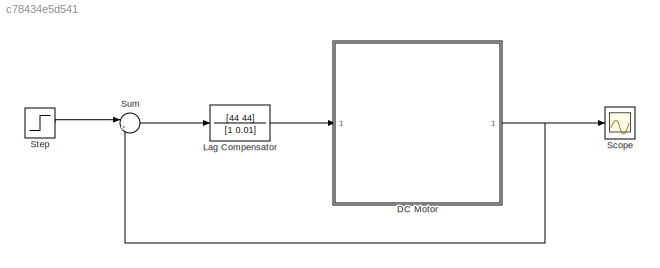
MODEL slx_c78434e5d541
KIND model
CONFIG AbsTol = auto
CONFIG FixedStep = auto
CONFIG MaxStep = auto
CONFIG MinStep = auto
CONFIG RelTol = 1e-3
CONFIG SampleTimeConstraint = Unconstrained
CONFIG Solver = VariableStepAuto
CONFIG SolverMode = Auto
CONFIG SolverName = VariableStepAuto
CONFIG StartTime = 0.0
CONFIG StopTime = 3.0
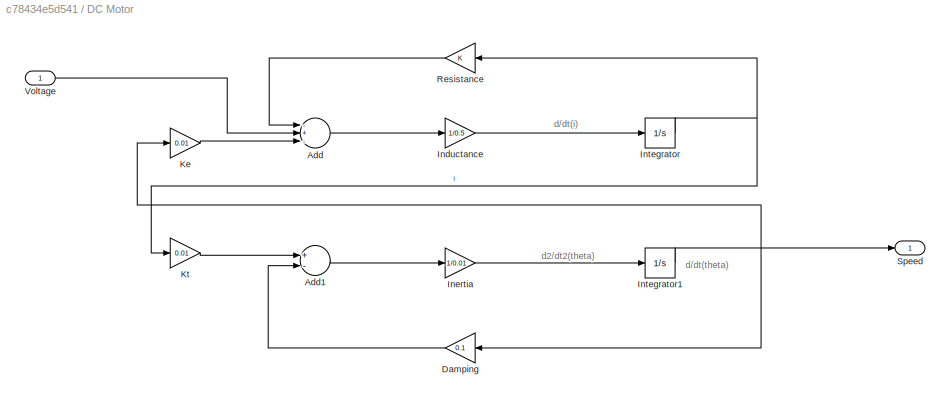
BLOCK [SubSystem] DC Motor 
  Ports = [1, 1]
  RequestExecContextInheritance = off
  Variant = off
BLOCK [Sum] DC Motor /Add
  InputSameDT = off
  Inputs = -+-
  OutDataTypeStr = Inherit: Inherit via internal rule
  Ports = [3, 1]
  SaturateOnIntegerOverflow = off
BLOCK [Sum] DC Motor /Add1
  InputSameDT = off
  Inputs = +-
  OutDataTypeStr = Inherit: Inherit via internal rule
  Ports = [2, 1]
  SaturateOnIntegerOverflow = off
BLOCK [Gain] DC Motor /Damping
  Gain = 0.1
  OutDataTypeStr = Inherit: Inherit via internal rule
  ParamDataTypeStr = Inherit: Inherit via internal rule
  SaturateOnIntegerOverflow = off
BLOCK [Gain] DC Motor /Inductance
  Gain = 1/0.5
  OutDataTypeStr = Inherit: Inherit via internal rule
  ParamDataTypeStr = Inherit: Inherit via internal rule
  SaturateOnIntegerOverflow = off
BLOCK [Gain] DC Motor /Inertia 
  Gain = 1/0.01
  OutDataTypeStr = Inherit: Inherit via internal rule
  ParamDataTypeStr = Inherit: Inherit via internal rule
  SaturateOnIntegerOverflow = off
BLOCK [Integrator] DC Motor /Integrator
  Ports = [1, 1]
BLOCK [Integrator] DC Motor /Integrator1
  Ports = [1, 1]
BLOCK [Gain] DC Motor /Ke 
  Gain = 0.01
  OutDataTypeStr = Inherit: Inherit via internal rule
  ParamDataTypeStr = Inherit: Inherit via internal rule
  SaturateOnIntegerOverflow = off
BLOCK [Gain] DC Motor /Kt 
  Gain = 0.01
  OutDataTypeStr = Inherit: Inherit via internal rule
  ParamDataTypeStr = Inherit: Inherit via internal rule
  SaturateOnIntegerOverflow = off
BLOCK [Gain] DC Motor /Resistance 
  OutDataTypeStr = Inherit: Inherit via internal rule
  ParamDataTypeStr = Inherit: Inherit via internal rule
  SaturateOnIntegerOverflow = off
BLOCK [Outport] DC Motor /Speed 
  IconDisplay = Port number
BLOCK [Inport] DC Motor /Voltage
  IconDisplay = Port number
BLOCK [TransferFcn] Lag Compensator
  Denominator = [1 0.01]
  Numerator = [44 44]
BLOCK [Scope] Scope
  Ports = [1]
  ScopeSpecificationString = Simulink.scopes.TimeScopeBlockCfg('CurrentConfiguration', extmgr.ConfigurationSet(extmgr.Configuration('Core','General UI',true),extmgr.Configuration('Core','Source UI',true),extmgr.Configuration('Sources','WiredSimulink',true),extmgr.Configuration('Visuals','Time Domain',true,'SerializedDisplays',{struct('MinYLimReal','-0.16499','MaxYLimReal','1.48491','YLabelReal','','MinYLimMag','0.00000','MaxY...<+1431ch>
BLOCK [Step] Step
  SampleTime = 0
  Time = 0
BLOCK [Sum] Sum
  IconShape = round
  InputSameDT = off
  Inputs = |+-
  OutDataTypeStr = Inherit: Inherit via internal rule
  Ports = [2, 1]
  SaturateOnIntegerOverflow = off
ANNOTATION DC Motor : d/dt(i)
ANNOTATION DC Motor : d/dt(theta)
ANNOTATION DC Motor : d2/dt2(theta)
LINE DC Motor /Add1:1 -> DC Motor /Inertia :1
LINE DC Motor /Add:1 -> DC Motor /Inductance:1
LINE DC Motor /Damping:1 -> DC Motor /Add1:2
LINE DC Motor /Inductance:1 -> DC Motor /Integrator:1
LINE DC Motor /Inertia :1 -> DC Motor /Integrator1:1
NET DC Motor /Integrator1:1 -> DC Motor /Damping:1, DC Motor /Ke :1, DC Motor /Speed :1
NET DC Motor /Integrator:1 -> DC Motor /Kt :1, DC Motor /Resistance :1
LINE DC Motor /Ke :1 -> DC Motor /Add:3
LINE DC Motor /Kt :1 -> DC Motor /Add1:1
LINE DC Motor /Resistance :1 -> DC Motor /Add:1
LINE DC Motor /Voltage:1 -> DC Motor /Add:2
NET DC Motor :1 -> Scope:1, Sum:2
LINE Lag Compensator:1 -> DC Motor :1
LINE Step:1 -> Sum:1
LINE Sum:1 -> Lag Compensator:1
note: NET lines group one-source signal fan-out (src -> all destinations, sorted); 1:1 wires keep LINE
